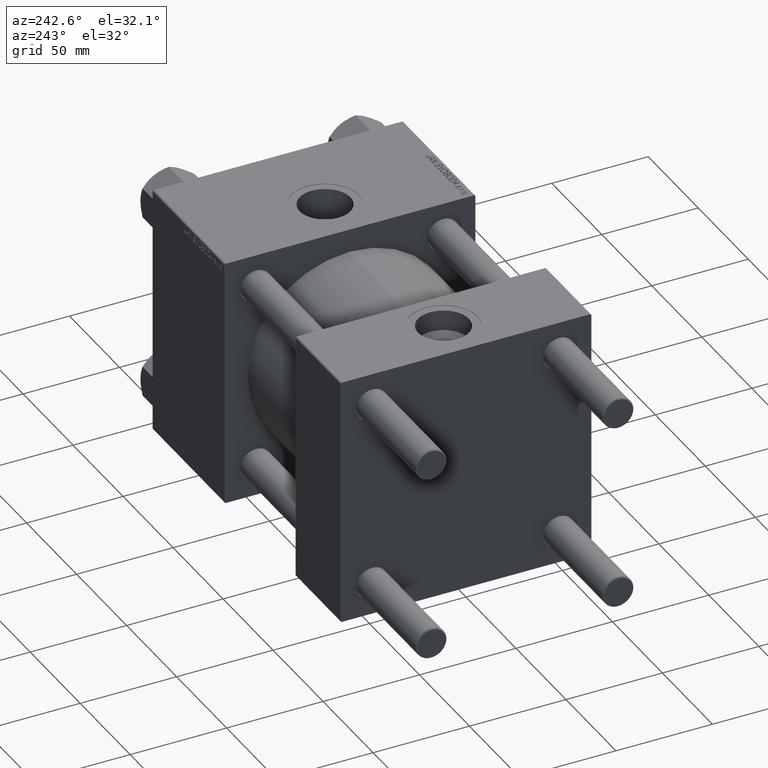
[diagram: clean part render]
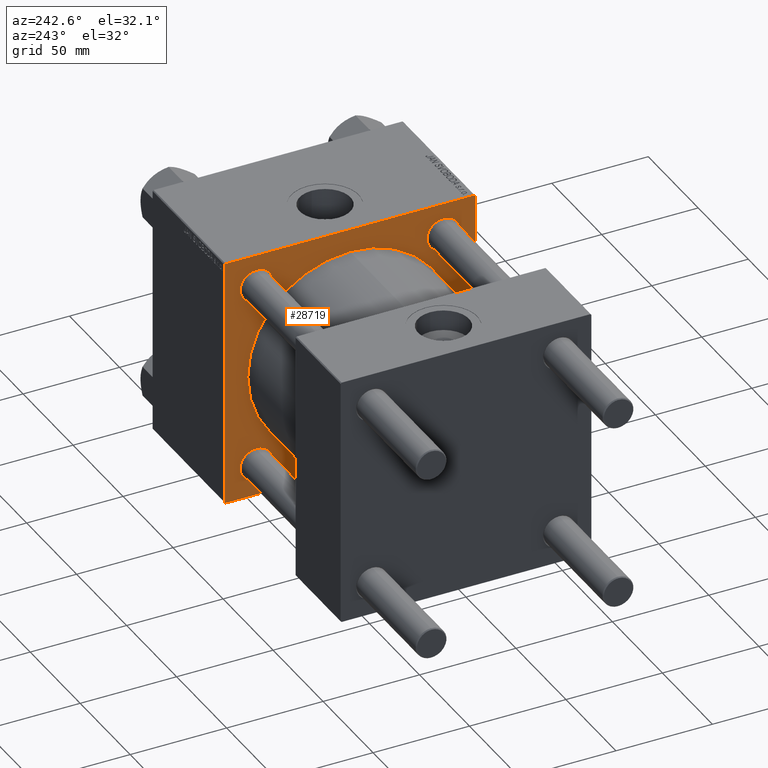
[diagram: same view with one face highlighted and labeled with its STEP entity id]
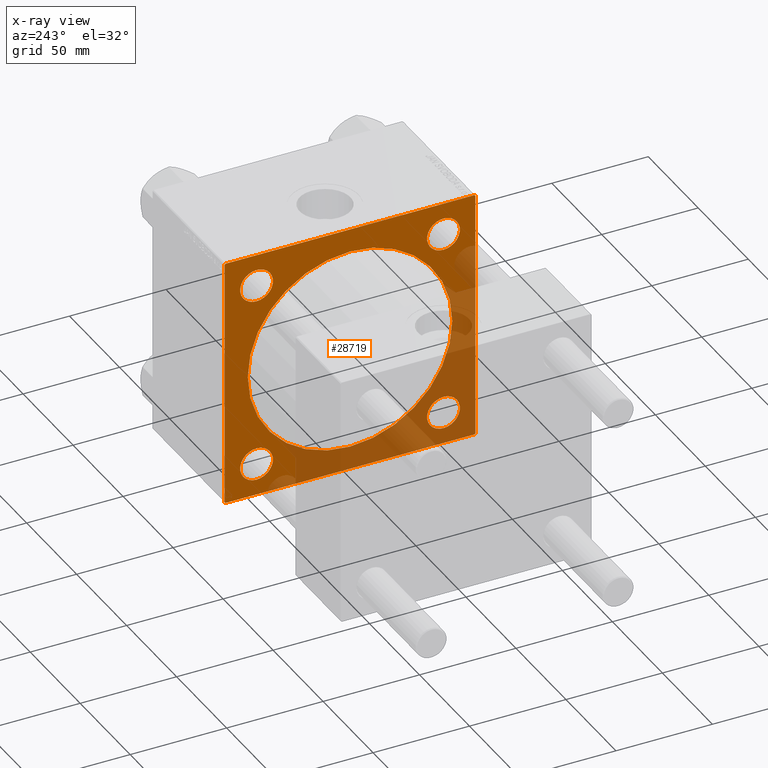
[diagram: x-ray of the same camera — body ghosted, the highlighted face saturated]
A machine part, auxiliary view. The second image highlights one B-rep face of the part: STEP entity #28719.
The next image is the same camera in x-ray: the body ghosted, the highlighted face saturated — about 37% of this face is hidden behind the body in this view.
In plain terms, the highlighted planar face has unit normal (-1, 0, 0).
Its self-contained STEP definition (entity closure, byte-faithful):
#53 = DIRECTION ( 'NONE',  ( 1.000000000000000000, -0.000000000000000000, 0.000000000000000000 ) ) ;
#484 = EDGE_LOOP ( 'NONE', ( #48935, #15708 ) ) ;
#706 = CARTESIAN_POINT ( 'NONE',  ( 115.9999999999999858, 48.45000000000000995, 48.45000000000001705 ) ) ;
#1469 = ORIENTED_EDGE ( 'NONE', *, *, #19588, .T. ) ;
#1595 = DIRECTION ( 'NONE',  ( 1.000000000000000000, -0.000000000000000000, 0.000000000000000000 ) ) ;
#2088 = DIRECTION ( 'NONE',  ( 0.000000000000000000, 0.000000000000000000, -1.000000000000000000 ) ) ;
#2111 = AXIS2_PLACEMENT_3D ( 'NONE', #13283, #28768, #44263 ) ;
#2144 = ORIENTED_EDGE ( 'NONE', *, *, #27723, .F. ) ;
#2229 = ORIENTED_EDGE ( 'NONE', *, *, #15594, .F. ) ;
#2318 = CARTESIAN_POINT ( 'NONE',  ( 115.9999999999999858, 65.00000000000002842, 65.00000000000001421 ) ) ;
#2507 = CARTESIAN_POINT ( 'NONE',  ( 115.9999999999999858, -48.44999999999999574, -48.45000000000003126 ) ) ;
#2764 = EDGE_CURVE ( 'NONE', #34327, #9430, #25817, .T. ) ;
#3045 = CARTESIAN_POINT ( 'NONE',  ( 115.9999999999999858, 48.45000000000000995, 56.94999999999996732 ) ) ;
#3932 = AXIS2_PLACEMENT_3D ( 'NONE', #706, #35462, #34953 ) ;
#5021 = VECTOR ( 'NONE', #47129, 1000.000000000000000 ) ;
#5025 = CARTESIAN_POINT ( 'NONE',  ( 115.9999999999999858, 65.00000000000002842, -64.50000000000001421 ) ) ;
#5258 = CARTESIAN_POINT ( 'NONE',  ( 115.9999999999999858, 48.45000000000000995, -39.95000000000005969 ) ) ;
#5312 = EDGE_LOOP ( 'NONE', ( #14833, #40878 ) ) ;
#5328 = CARTESIAN_POINT ( 'NONE',  ( 115.9999999999999858, 48.45000000000000995, 39.95000000000005969 ) ) ;
#5587 = FACE_BOUND ( 'NONE', #29696, .T. ) ;
#5834 = FACE_BOUND ( 'NONE', #484, .T. ) ;
#6778 = AXIS2_PLACEMENT_3D ( 'NONE', #47841, #28293, #20925 ) ;
#6887 = CIRCLE ( 'NONE', #15785, 8.499999999999952038 ) ;
#6890 = AXIS2_PLACEMENT_3D ( 'NONE', #34149, #23722, #30347 ) ;
#7114 = ORIENTED_EDGE ( 'NONE', *, *, #44542, .T. ) ;
#7689 = EDGE_CURVE ( 'NONE', #44132, #48058, #29082, .T. ) ;
#8045 = DIRECTION ( 'NONE',  ( 0.000000000000000000, 0.000000000000000000, -1.000000000000000000 ) ) ;
#8257 = VERTEX_POINT ( 'NONE', #33761 ) ;
#8849 = CARTESIAN_POINT ( 'NONE',  ( 115.9999999999999858, 64.50000000000005684, 65.00000000000001421 ) ) ;
#9273 = DIRECTION ( 'NONE',  ( 0.000000000000000000, 0.7071067811865279218, -0.7071067811865671127 ) ) ;
#9430 = VERTEX_POINT ( 'NONE', #5328 ) ;
#9456 = CIRCLE ( 'NONE', #28901, 8.499999999999952038 ) ;
#9760 = ORIENTED_EDGE ( 'NONE', *, *, #45498, .T. ) ;
#9853 = EDGE_CURVE ( 'NONE', #48058, #8257, #13613, .T. ) ;
#9899 = VECTOR ( 'NONE', #41620, 1000.000000000000000 ) ;
#10125 = CIRCLE ( 'NONE', #6890, 8.499999999999952038 ) ;
#11470 = EDGE_LOOP ( 'NONE', ( #7114, #23562 ) ) ;
#11484 = VERTEX_POINT ( 'NONE', #44690 ) ;
#13189 = CIRCLE ( 'NONE', #43183, 8.499999999999952038 ) ;
#13283 = CARTESIAN_POINT ( 'NONE',  ( 115.9999999999999858, -48.44999999999999574, 48.45000000000003126 ) ) ;
#13613 = LINE ( 'NONE', #32650, #37288 ) ;
#14170 = DIRECTION ( 'NONE',  ( 0.000000000000000000, 0.000000000000000000, 1.000000000000000000 ) ) ;
#14833 = ORIENTED_EDGE ( 'NONE', *, *, #18941, .T. ) ;
#15594 = EDGE_CURVE ( 'NONE', #23804, #37148, #29706, .T. ) ;
#15708 = ORIENTED_EDGE ( 'NONE', *, *, #32254, .T. ) ;
#15757 = CARTESIAN_POINT ( 'NONE',  ( 115.9999999999999858, 65.00000000000002842, 64.50000000000001421 ) ) ;
#15785 = AXIS2_PLACEMENT_3D ( 'NONE', #36146, #20913, #16357 ) ;
#16169 = LINE ( 'NONE', #31646, #5021 ) ;
#16357 = DIRECTION ( 'NONE',  ( 0.000000000000000000, 0.000000000000000000, 1.000000000000000000 ) ) ;
#16971 = VERTEX_POINT ( 'NONE', #39913 ) ;
#17279 = VECTOR ( 'NONE', #39205, 1000.000000000000000 ) ;
#17382 = LINE ( 'NONE', #21182, #35406 ) ;
#18031 = VERTEX_POINT ( 'NONE', #15757 ) ;
#18684 = CARTESIAN_POINT ( 'NONE',  ( 115.9999999999999858, -48.44999999999999574, -56.94999999999998153 ) ) ;
#18901 = AXIS2_PLACEMENT_3D ( 'NONE', #42427, #53, #31000 ) ;
#18941 = EDGE_CURVE ( 'NONE', #20773, #29206, #47280, .T. ) ;
#19200 = CARTESIAN_POINT ( 'NONE',  ( 115.9999999999999858, 65.00000000000002842, 65.00000000000001421 ) ) ;
#19588 = EDGE_CURVE ( 'NONE', #18031, #39533, #22759, .T. ) ;
#19651 = DIRECTION ( 'NONE',  ( -0.000000000000000000, 0.7071067811865376918, 0.7071067811865574537 ) ) ;
#19912 = CIRCLE ( 'NONE', #45042, 53.00000000000000711 ) ;
#20264 = CARTESIAN_POINT ( 'NONE',  ( 115.9999999999999858, -64.50000000000008527, 65.00000000000000000 ) ) ;
#20290 = DIRECTION ( 'NONE',  ( -1.000000000000000000, 0.000000000000000000, -0.000000000000000000 ) ) ;
#20549 = EDGE_CURVE ( 'NONE', #27219, #37148, #27025, .T. ) ;
#20773 = VERTEX_POINT ( 'NONE', #46253 ) ;
#20913 = DIRECTION ( 'NONE',  ( 1.000000000000000000, -0.000000000000000000, 0.000000000000000000 ) ) ;
#20925 = DIRECTION ( 'NONE',  ( 0.000000000000000000, 0.000000000000000000, -1.000000000000000000 ) ) ;
#20956 = DIRECTION ( 'NONE',  ( 0.000000000000000000, -1.000000000000000000, -2.135044278125300850E-16 ) ) ;
#21018 = ORIENTED_EDGE ( 'NONE', *, *, #7689, .T. ) ;
#21103 = CARTESIAN_POINT ( 'NONE',  ( 115.9999999999999858, 0.000000000000000000, 0.000000000000000000 ) ) ;
#21182 = CARTESIAN_POINT ( 'NONE',  ( 115.9999999999999858, 64.75000000000181899, 64.74999999999822364 ) ) ;
#21334 = VECTOR ( 'NONE', #8045, 1000.000000000000000 ) ;
#21831 = EDGE_CURVE ( 'NONE', #9430, #34327, #10125, .T. ) ;
#22759 = LINE ( 'NONE', #19200, #21334 ) ;
#22889 = CARTESIAN_POINT ( 'NONE',  ( 115.9999999999999858, -64.50000000000002842, -65.00000000000001421 ) ) ;
#22972 = CARTESIAN_POINT ( 'NONE',  ( 115.9999999999999858, 64.74999999999822364, -64.75000000000180478 ) ) ;
#23554 = CARTESIAN_POINT ( 'NONE',  ( 115.9999999999999858, 65.00000000000002842, -64.99999999999998579 ) ) ;
#23562 = ORIENTED_EDGE ( 'NONE', *, *, #25502, .T. ) ;
#23722 = DIRECTION ( 'NONE',  ( 1.000000000000000000, -0.000000000000000000, 0.000000000000000000 ) ) ;
#23779 = CARTESIAN_POINT ( 'NONE',  ( 115.9999999999999858, 64.50000000000002842, -64.99999999999998579 ) ) ;
#23804 = VERTEX_POINT ( 'NONE', #8849 ) ;
#24009 = VERTEX_POINT ( 'NONE', #18684 ) ;
#24448 = ORIENTED_EDGE ( 'NONE', *, *, #20549, .T. ) ;
#24545 = ORIENTED_EDGE ( 'NONE', *, *, #32249, .T. ) ;
#25239 = DIRECTION ( 'NONE',  ( 0.000000000000000000, 0.000000000000000000, 1.000000000000000000 ) ) ;
#25361 = CIRCLE ( 'NONE', #40758, 8.499999999999952038 ) ;
#25502 = EDGE_CURVE ( 'NONE', #37699, #37393, #6887, .T. ) ;
#25696 = CARTESIAN_POINT ( 'NONE',  ( 115.9999999999999858, 48.45000000000000995, -48.45000000000001705 ) ) ;
#25817 = CIRCLE ( 'NONE', #3932, 8.499999999999952038 ) ;
#27025 = LINE ( 'NONE', #27278, #34331 ) ;
#27219 = VERTEX_POINT ( 'NONE', #33961 ) ;
#27278 = CARTESIAN_POINT ( 'NONE',  ( 115.9999999999999858, -64.75000000000093792, 64.74999999999914735 ) ) ;
#27723 = EDGE_CURVE ( 'NONE', #27219, #8257, #16169, .T. ) ;
#28293 = DIRECTION ( 'NONE',  ( 1.000000000000000000, 0.000000000000000000, 0.000000000000000000 ) ) ;
#28719 = ADVANCED_FACE ( 'NONE', ( #44154, #5587, #29164, #44403, #5834, #44655 ), #35769, .T. ) ;
#28768 = DIRECTION ( 'NONE',  ( 1.000000000000000000, -0.000000000000000000, 0.000000000000000000 ) ) ;
#28901 = AXIS2_PLACEMENT_3D ( 'NONE', #25696, #1595, #32543 ) ;
#29082 = LINE ( 'NONE', #23554, #39751 ) ;
#29164 = FACE_BOUND ( 'NONE', #11470, .T. ) ;
#29206 = VERTEX_POINT ( 'NONE', #35074 ) ;
#29696 = EDGE_LOOP ( 'NONE', ( #30810, #43903 ) ) ;
#29706 = LINE ( 'NONE', #2318, #9899 ) ;
#30159 = EDGE_LOOP ( 'NONE', ( #47104, #24545 ) ) ;
#30250 = EDGE_CURVE ( 'NONE', #32698, #24009, #13189, .T. ) ;
#30347 = DIRECTION ( 'NONE',  ( 0.000000000000000000, 0.000000000000000000, 1.000000000000000000 ) ) ;
#30810 = ORIENTED_EDGE ( 'NONE', *, *, #2764, .T. ) ;
#31000 = DIRECTION ( 'NONE',  ( 0.000000000000000000, 0.000000000000000000, 1.000000000000000000 ) ) ;
#31646 = CARTESIAN_POINT ( 'NONE',  ( 115.9999999999999858, -64.99999999999998579, 65.00000000000000000 ) ) ;
#32084 = CARTESIAN_POINT ( 'NONE',  ( 115.9999999999999858, 48.45000000000000995, -56.94999999999996732 ) ) ;
#32092 = EDGE_CURVE ( 'NONE', #39533, #44132, #42770, .T. ) ;
#32110 = CARTESIAN_POINT ( 'NONE',  ( 115.9999999999999858, -48.44999999999999574, -48.45000000000003126 ) ) ;
#32249 = EDGE_CURVE ( 'NONE', #24009, #32698, #25361, .T. ) ;
#32254 = EDGE_CURVE ( 'NONE', #11484, #16971, #47238, .T. ) ;
#32471 = DIRECTION ( 'NONE',  ( -0.000000000000000000, 0.000000000000000000, 1.000000000000000000 ) ) ;
#32543 = DIRECTION ( 'NONE',  ( 0.000000000000000000, 0.000000000000000000, 1.000000000000000000 ) ) ;
#32650 = CARTESIAN_POINT ( 'NONE',  ( 115.9999999999999858, -64.75000000000180478, -64.74999999999820943 ) ) ;
#32698 = VERTEX_POINT ( 'NONE', #38831 ) ;
#33761 = CARTESIAN_POINT ( 'NONE',  ( 115.9999999999999858, -64.99999999999998579, -64.50000000000002842 ) ) ;
#33764 = ORIENTED_EDGE ( 'NONE', *, *, #32092, .T. ) ;
#33961 = CARTESIAN_POINT ( 'NONE',  ( 115.9999999999999858, -64.99999999999998579, 64.50000000000008527 ) ) ;
#34149 = CARTESIAN_POINT ( 'NONE',  ( 115.9999999999999858, 48.45000000000000995, 48.45000000000001705 ) ) ;
#34327 = VERTEX_POINT ( 'NONE', #3045 ) ;
#34331 = VECTOR ( 'NONE', #19651, 999.9999999999998863 ) ;
#34953 = DIRECTION ( 'NONE',  ( 0.000000000000000000, 0.000000000000000000, 1.000000000000000000 ) ) ;
#35074 = CARTESIAN_POINT ( 'NONE',  ( 115.9999999999999858, -48.44999999999999574, 39.95000000000007390 ) ) ;
#35406 = VECTOR ( 'NONE', #9273, 1000.000000000000000 ) ;
#35462 = DIRECTION ( 'NONE',  ( 1.000000000000000000, -0.000000000000000000, 0.000000000000000000 ) ) ;
#35769 = PLANE ( 'NONE',  #37431 ) ;
#36146 = CARTESIAN_POINT ( 'NONE',  ( 115.9999999999999858, 48.45000000000000995, -48.45000000000001705 ) ) ;
#36583 = DIRECTION ( 'NONE',  ( 1.000000000000000000, 0.000000000000000000, 0.000000000000000000 ) ) ;
#37148 = VERTEX_POINT ( 'NONE', #20264 ) ;
#37288 = VECTOR ( 'NONE', #44338, 1000.000000000000000 ) ;
#37393 = VERTEX_POINT ( 'NONE', #5258 ) ;
#37431 = AXIS2_PLACEMENT_3D ( 'NONE', #40087, #20290, #32471 ) ;
#37699 = VERTEX_POINT ( 'NONE', #32084 ) ;
#38831 = CARTESIAN_POINT ( 'NONE',  ( 115.9999999999999858, -48.44999999999999574, -39.95000000000007390 ) ) ;
#38947 = EDGE_CURVE ( 'NONE', #16971, #11484, #19912, .T. ) ;
#39205 = DIRECTION ( 'NONE',  ( -0.000000000000000000, -0.7071067811865671127, -0.7071067811865279218 ) ) ;
#39533 = VERTEX_POINT ( 'NONE', #5025 ) ;
#39751 = VECTOR ( 'NONE', #20956, 1000.000000000000000 ) ;
#39913 = CARTESIAN_POINT ( 'NONE',  ( 115.9999999999999858, 0.000000000000000000, 53.00000000000000711 ) ) ;
#40087 = CARTESIAN_POINT ( 'NONE',  ( 115.9999999999999858, 0.000000000000000000, 0.000000000000000000 ) ) ;
#40758 = AXIS2_PLACEMENT_3D ( 'NONE', #32110, #48095, #25239 ) ;
#40878 = ORIENTED_EDGE ( 'NONE', *, *, #41819, .T. ) ;
#41620 = DIRECTION ( 'NONE',  ( 0.000000000000000000, -1.000000000000000000, -1.067522139062650425E-16 ) ) ;
#41819 = EDGE_CURVE ( 'NONE', #29206, #20773, #43395, .T. ) ;
#42427 = CARTESIAN_POINT ( 'NONE',  ( 115.9999999999999858, -48.44999999999999574, 48.45000000000003126 ) ) ;
#42770 = LINE ( 'NONE', #22972, #17279 ) ;
#43043 = EDGE_LOOP ( 'NONE', ( #21018, #44573, #2144, #24448, #2229, #9760, #1469, #33764 ) ) ;
#43183 = AXIS2_PLACEMENT_3D ( 'NONE', #2507, #45859, #14170 ) ;
#43395 = CIRCLE ( 'NONE', #2111, 8.499999999999952038 ) ;
#43903 = ORIENTED_EDGE ( 'NONE', *, *, #21831, .T. ) ;
#44132 = VERTEX_POINT ( 'NONE', #23779 ) ;
#44154 = FACE_BOUND ( 'NONE', #5312, .T. ) ;
#44263 = DIRECTION ( 'NONE',  ( 0.000000000000000000, 0.000000000000000000, 1.000000000000000000 ) ) ;
#44338 = DIRECTION ( 'NONE',  ( 0.000000000000000000, -0.7071067811865279218, 0.7071067811865672237 ) ) ;
#44403 = FACE_BOUND ( 'NONE', #30159, .T. ) ;
#44542 = EDGE_CURVE ( 'NONE', #37393, #37699, #9456, .T. ) ;
#44573 = ORIENTED_EDGE ( 'NONE', *, *, #9853, .T. ) ;
#44655 = FACE_OUTER_BOUND ( 'NONE', #43043, .T. ) ;
#44690 = CARTESIAN_POINT ( 'NONE',  ( 115.9999999999999858, 6.490628035480973107E-15, -53.00000000000000711 ) ) ;
#45042 = AXIS2_PLACEMENT_3D ( 'NONE', #21103, #36583, #2088 ) ;
#45498 = EDGE_CURVE ( 'NONE', #23804, #18031, #17382, .T. ) ;
#45859 = DIRECTION ( 'NONE',  ( 1.000000000000000000, -0.000000000000000000, 0.000000000000000000 ) ) ;
#46253 = CARTESIAN_POINT ( 'NONE',  ( 115.9999999999999858, -48.44999999999999574, 56.94999999999998153 ) ) ;
#47104 = ORIENTED_EDGE ( 'NONE', *, *, #30250, .T. ) ;
#47129 = DIRECTION ( 'NONE',  ( 0.000000000000000000, 0.000000000000000000, -1.000000000000000000 ) ) ;
#47238 = CIRCLE ( 'NONE', #6778, 53.00000000000000711 ) ;
#47280 = CIRCLE ( 'NONE', #18901, 8.499999999999952038 ) ;
#47841 = CARTESIAN_POINT ( 'NONE',  ( 115.9999999999999858, 0.000000000000000000, 0.000000000000000000 ) ) ;
#48058 = VERTEX_POINT ( 'NONE', #22889 ) ;
#48095 = DIRECTION ( 'NONE',  ( 1.000000000000000000, -0.000000000000000000, 0.000000000000000000 ) ) ;
#48935 = ORIENTED_EDGE ( 'NONE', *, *, #38947, .T. ) ;